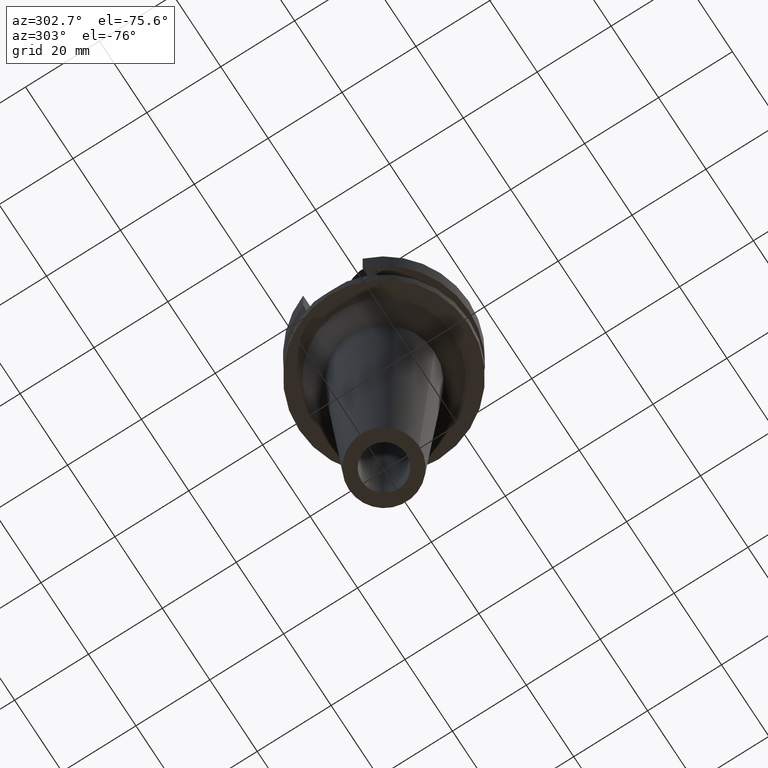
[diagram: clean part render]
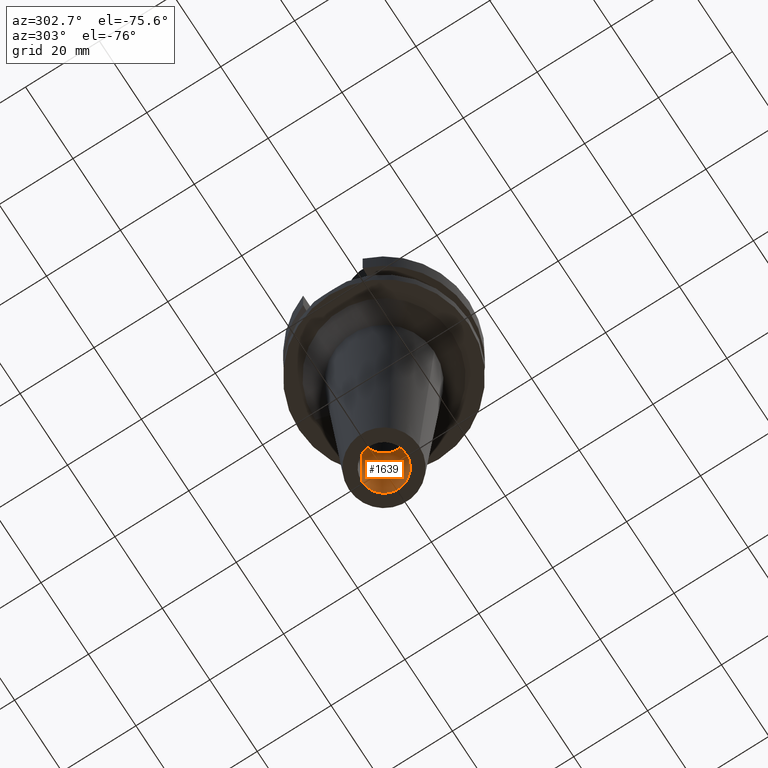
[diagram: same view with one face highlighted and labeled with its STEP entity id]
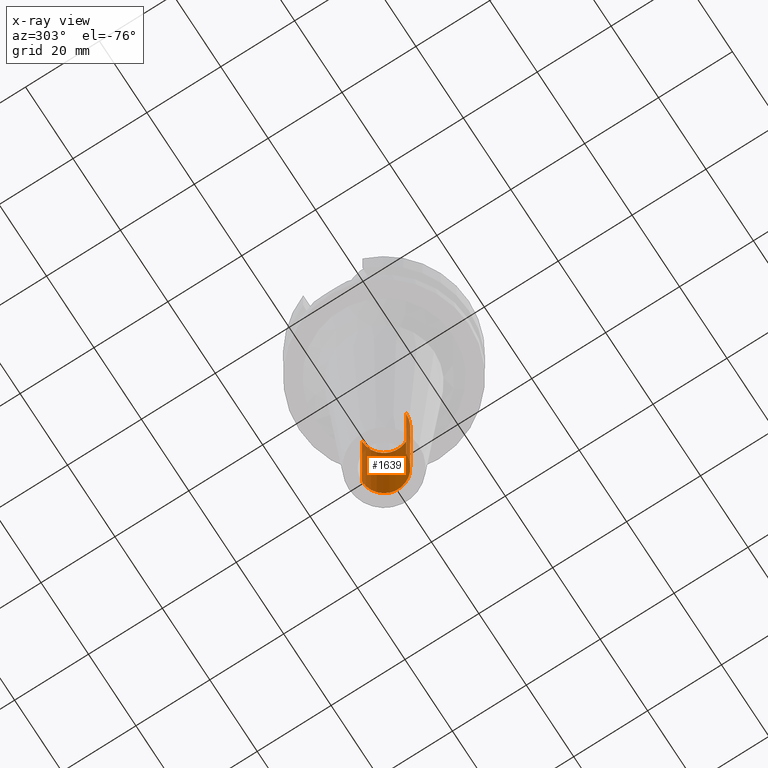
[diagram: x-ray of the same camera — body ghosted, the highlighted face saturated]
A machine part, auxiliary view. The second image highlights one B-rep face of the part: STEP entity #1639.
The next image is the same camera in x-ray: the body ghosted, the highlighted face saturated — about 7% of this face is hidden behind the body in this view.
In plain terms, the highlighted cylindrical surface (edge-blend (fillet) strip) has radius 6 mm, axis along (0, 0, -1).
Its self-contained STEP definition (entity closure, byte-faithful):
#715=CARTESIAN_POINT('',(0.E0,1.911306259429E-14,-1.05E2));
#716=DIRECTION('',(0.E0,0.E0,-1.E0));
#717=DIRECTION('',(0.E0,1.E0,0.E0));
#718=AXIS2_PLACEMENT_3D('',#715,#716,#717);
#723=DIRECTION('',(0.E0,0.E0,1.E0));
#724=VECTOR('',#723,3.68E1);
#725=CARTESIAN_POINT('',(0.E0,-6.E0,-1.05E2));
#726=LINE('',#725,#724);
#730=DIRECTION('',(0.E0,0.E0,1.E0));
#731=VECTOR('',#730,3.68E1);
#732=CARTESIAN_POINT('',(0.E0,6.E0,-1.05E2));
#733=LINE('',#732,#731);
#753=CARTESIAN_POINT('',(0.E0,1.911306259429E-14,-6.82E1));
#754=DIRECTION('',(0.E0,0.E0,1.E0));
#755=DIRECTION('',(0.E0,-1.E0,0.E0));
#756=AXIS2_PLACEMENT_3D('',#753,#754,#755);
#1011=CARTESIAN_POINT('',(0.E0,-6.E0,-6.82E1));
#1012=CARTESIAN_POINT('',(0.E0,6.E0,-6.82E1));
#1013=VERTEX_POINT('',#1011);
#1014=VERTEX_POINT('',#1012);
#1015=CARTESIAN_POINT('',(0.E0,6.E0,-1.05E2));
#1016=VERTEX_POINT('',#1015);
#1017=CARTESIAN_POINT('',(0.E0,-6.E0,-1.05E2));
#1018=VERTEX_POINT('',#1017);
#1627=CARTESIAN_POINT('',(0.E0,1.911306259429E-14,5.607E1));
#1628=DIRECTION('',(0.E0,0.E0,-1.E0));
#1629=DIRECTION('',(0.E0,-1.E0,0.E0));
#1630=AXIS2_PLACEMENT_3D('',#1627,#1628,#1629);
#1631=CYLINDRICAL_SURFACE('',#1630,6.E0);
#1632=ORIENTED_EDGE('',*,*,#1617,.T.);
#1634=ORIENTED_EDGE('',*,*,#1633,.F.);
#1635=ORIENTED_EDGE('',*,*,#1620,.F.);
#1636=ORIENTED_EDGE('',*,*,#1607,.F.);
#1637=EDGE_LOOP('',(#1632,#1634,#1635,#1636));
#1638=FACE_OUTER_BOUND('',#1637,.F.);
#719=CIRCLE('',#718,6.E0);
#757=CIRCLE('',#756,6.E0);
#1607=EDGE_CURVE('',#1016,#1018,#719,.T.);
#1617=EDGE_CURVE('',#1016,#1014,#733,.T.);
#1620=EDGE_CURVE('',#1018,#1013,#726,.T.);
#1633=EDGE_CURVE('',#1013,#1014,#757,.T.);
#1639=ADVANCED_FACE('',(#1638),#1631,.F.);